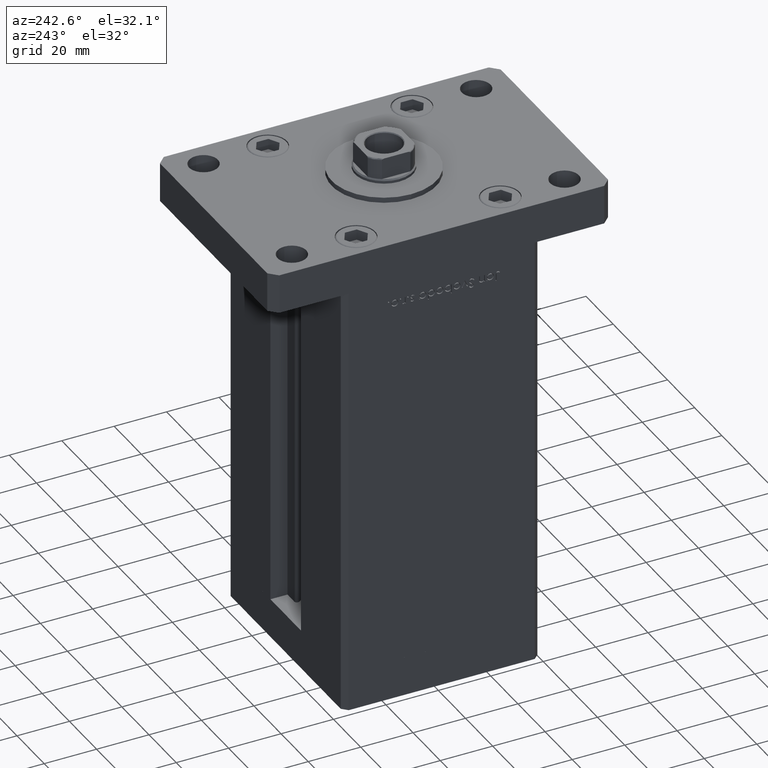
[diagram: clean part render]
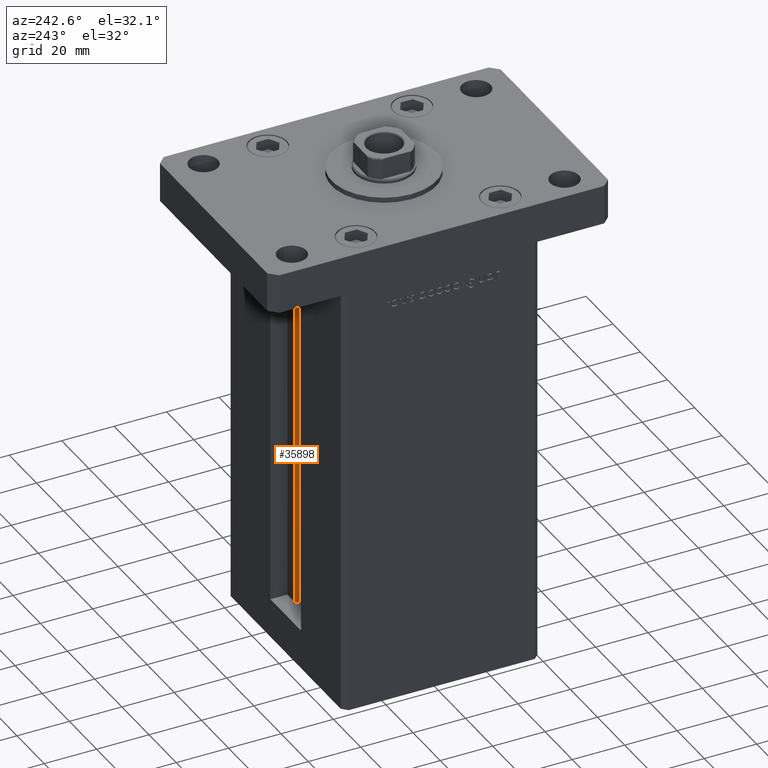
[diagram: same view with one face highlighted and labeled with its STEP entity id]
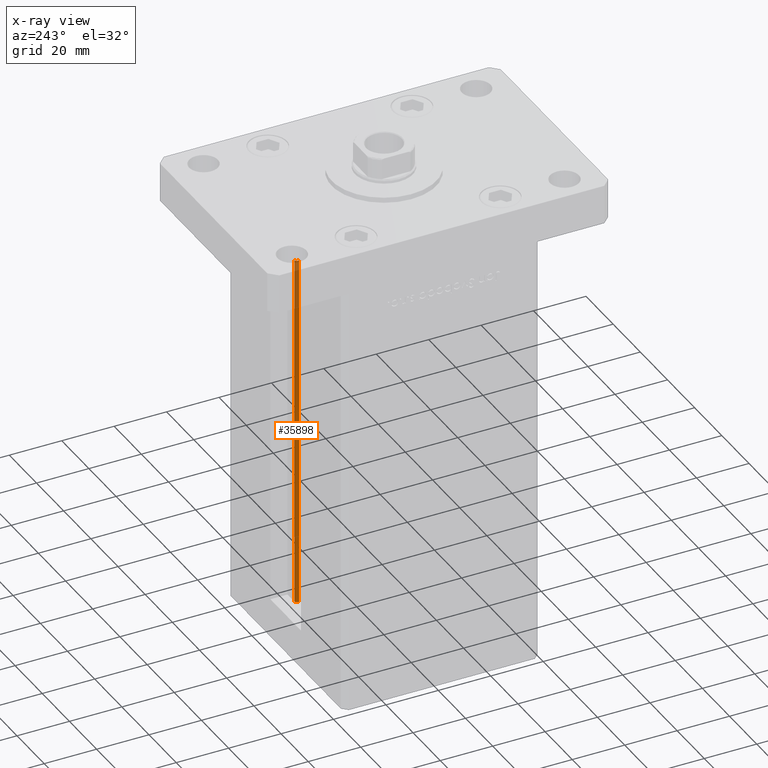
[diagram: x-ray of the same camera — body ghosted, the highlighted face saturated]
A machine part, auxiliary view. The second image highlights one B-rep face of the part: STEP entity #35898.
The next image is the same camera in x-ray: the body ghosted, the highlighted face saturated — about 14% of this face is hidden behind the body in this view.
In plain terms, the highlighted cylindrical surface (edge-blend (fillet) strip) has radius 0.9333 mm, axis along (0, 0, 1).
Its self-contained STEP definition (entity closure, byte-faithful):
#2748 = DIRECTION ( 'NONE',  ( 1.000000000000000000, 0.000000000000000000, 0.000000000000000000 ) ) ;
#4223 = VECTOR ( 'NONE', #44572, 1000.000000000000000 ) ;
#4237 = DIRECTION ( 'NONE',  ( -0.000000000000000000, -0.000000000000000000, -1.000000000000000000 ) ) ;
#4635 = ORIENTED_EDGE ( 'NONE', *, *, #24646, .T. ) ;
#7730 = CARTESIAN_POINT ( 'NONE',  ( 5.375042956467943611, 29.59999999999899245, 0.000000000000000000 ) ) ;
#8506 = AXIS2_PLACEMENT_3D ( 'NONE', #40409, #19560, #2748 ) ;
#10474 = CARTESIAN_POINT ( 'NONE',  ( 5.375042956467944499, 29.59999999999898890, 136.5000000000000000 ) ) ;
#11413 = DIRECTION ( 'NONE',  ( 1.000000000000000000, 0.000000000000000000, 0.000000000000000000 ) ) ;
#13620 = EDGE_LOOP ( 'NONE', ( #28159, #38905, #37607, #4635 ) ) ;
#14212 = AXIS2_PLACEMENT_3D ( 'NONE', #27937, #4237, #11413 ) ;
#17311 = FACE_OUTER_BOUND ( 'NONE', #13620, .T. ) ;
#18262 = AXIS2_PLACEMENT_3D ( 'NONE', #29774, #45488, #34389 ) ;
#19560 = DIRECTION ( 'NONE',  ( 0.000000000000000000, 0.000000000000000000, -1.000000000000000000 ) ) ;
#19857 = CARTESIAN_POINT ( 'NONE',  ( 6.183333333333999704, 30.99999999999999289, 136.5000000000000000 ) ) ;
#24646 = EDGE_CURVE ( 'NONE', #52851, #42954, #24933, .T. ) ;
#24933 = CIRCLE ( 'NONE', #8506, 0.9333333333340015914 ) ;
#27937 = CARTESIAN_POINT ( 'NONE',  ( 6.183333333333999704, 30.06666666666599141, 0.000000000000000000 ) ) ;
#28159 = ORIENTED_EDGE ( 'NONE', *, *, #30327, .F. ) ;
#28898 = EDGE_CURVE ( 'NONE', #49959, #52851, #41152, .T. ) ;
#28968 = CYLINDRICAL_SURFACE ( 'NONE', #18262, 0.9333333333340015914 ) ;
#29302 = VECTOR ( 'NONE', #53635, 1000.000000000000000 ) ;
#29774 = CARTESIAN_POINT ( 'NONE',  ( 6.183333333333999704, 30.06666666666599141, 0.000000000000000000 ) ) ;
#30327 = EDGE_CURVE ( 'NONE', #45274, #42954, #48651, .T. ) ;
#31491 = CIRCLE ( 'NONE', #14212, 0.9333333333340015914 ) ;
#34389 = DIRECTION ( 'NONE',  ( 1.000000000000000000, 0.000000000000000000, 0.000000000000000000 ) ) ;
#35898 = ADVANCED_FACE ( 'NONE', ( #17311 ), #28968, .T. ) ;
#37087 = CARTESIAN_POINT ( 'NONE',  ( 5.375042956467943611, 29.59999999999899245, 0.000000000000000000 ) ) ;
#37607 = ORIENTED_EDGE ( 'NONE', *, *, #28898, .T. ) ;
#38905 = ORIENTED_EDGE ( 'NONE', *, *, #43243, .F. ) ;
#40409 = CARTESIAN_POINT ( 'NONE',  ( 6.183333333333999704, 30.06666666666599141, 136.5000000000000000 ) ) ;
#41152 = LINE ( 'NONE', #37087, #29302 ) ;
#42954 = VERTEX_POINT ( 'NONE', #19857 ) ;
#43243 = EDGE_CURVE ( 'NONE', #49959, #45274, #31491, .T. ) ;
#44572 = DIRECTION ( 'NONE',  ( -0.000000000000000000, -0.000000000000000000, 1.000000000000000000 ) ) ;
#45274 = VERTEX_POINT ( 'NONE', #46433 ) ;
#45488 = DIRECTION ( 'NONE',  ( -0.000000000000000000, -0.000000000000000000, 1.000000000000000000 ) ) ;
#46433 = CARTESIAN_POINT ( 'NONE',  ( 6.183333333333999704, 30.99999999999999289, 0.000000000000000000 ) ) ;
#48651 = LINE ( 'NONE', #49175, #4223 ) ;
#49175 = CARTESIAN_POINT ( 'NONE',  ( 6.183333333333999704, 30.99999999999999289, 0.000000000000000000 ) ) ;
#49959 = VERTEX_POINT ( 'NONE', #7730 ) ;
#52851 = VERTEX_POINT ( 'NONE', #10474 ) ;
#53635 = DIRECTION ( 'NONE',  ( -0.000000000000000000, -0.000000000000000000, 1.000000000000000000 ) ) ;